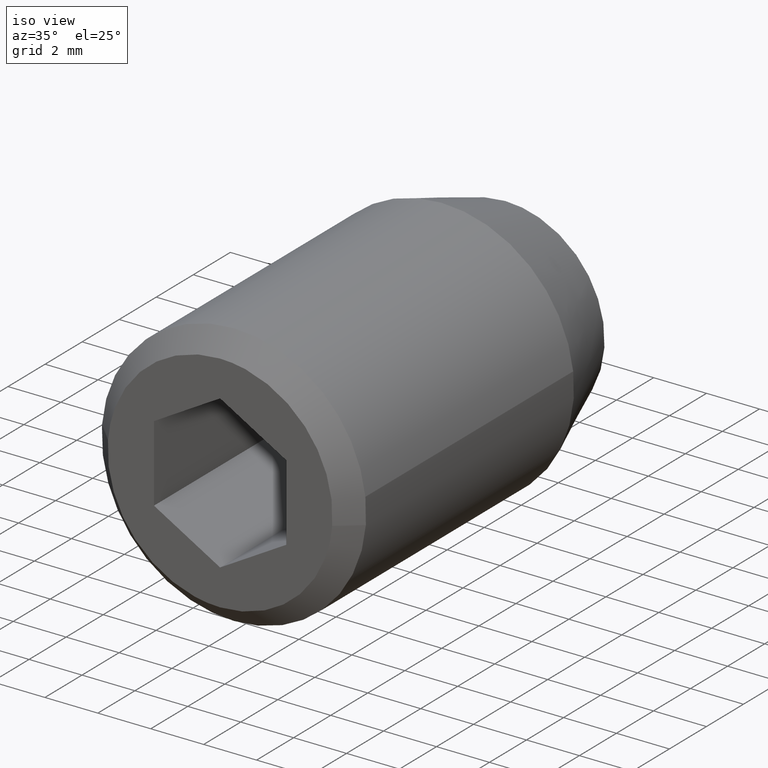
[diagram: clean part render]
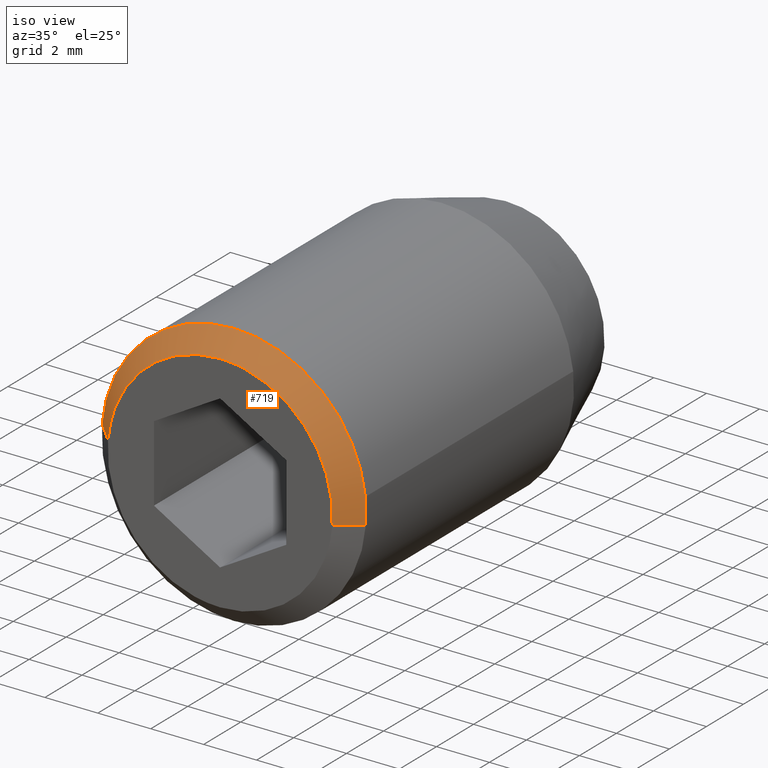
[diagram: same view with one face highlighted and labeled with its STEP entity id]
A machine part, iso view. The second image highlights one B-rep face of the part: STEP entity #719.
In plain terms, the highlighted face is a freeform B-spline surface patch.
Its self-contained STEP definition (entity closure, byte-faithful):
#457=CARTESIAN_POINT('',(4.967346085301280,-14.650000000000000,0.570502295210953));
#458=VERTEX_POINT('',#457);
#459=CARTESIAN_POINT('',(0.0,-14.650000000000000,4.999999999999999));
#460=VERTEX_POINT('',#459);
#461=CARTESIAN_POINT('',(4.967346085301280,-14.649999999999997,0.570502295210953));
#462=CARTESIAN_POINT('',(4.458615957821147,-14.649999999999991,4.999999999999998));
#463=CARTESIAN_POINT('',(0.0,-14.650000000000000,4.999999999999999));
#471=(BOUNDED_CURVE()B_SPLINE_CURVE(2,(#461,#462,#463),.UNSPECIFIED.,.F.,.U.)B_SPLINE_CURVE_WITH_KNOTS((3,3),(0.269767720836219,0.500000000000000),.UNSPECIFIED.)CURVE()GEOMETRIC_REPRESENTATION_ITEM()RATIONAL_B_SPLINE_CURVE((0.957343805581206,0.730266106723851,1.0))REPRESENTATION_ITEM(''));
#472=EDGE_CURVE('',#458,#460,#471,.T.);
#488=CARTESIAN_POINT('',(-4.984586668666798,-14.649999999997091,0.392295478661580));
#489=VERTEX_POINT('',#488);
#503=CARTESIAN_POINT('',(0.0,-14.650000000000000,4.999999999999999));
#504=CARTESIAN_POINT('',(-4.621952458249877,-14.649999999999997,4.999999999999999));
#505=CARTESIAN_POINT('',(-4.984586668666798,-14.649999999997092,0.392295478661580));
#513=(BOUNDED_CURVE()B_SPLINE_CURVE(2,(#503,#504,#505),.UNSPECIFIED.,.F.,.U.)B_SPLINE_CURVE_WITH_KNOTS((3,3),(0.500000000000000,0.736331300631245),.UNSPECIFIED.)CURVE()GEOMETRIC_REPRESENTATION_ITEM()RATIONAL_B_SPLINE_CURVE((1.0,0.723120658606980,0.969723356168640))REPRESENTATION_ITEM(''));
#514=EDGE_CURVE('',#460,#489,#513,.T.);
#541=CARTESIAN_POINT('',(4.984586668666797,-14.649999999997091,-0.392295478661581));
#542=VERTEX_POINT('',#541);
#543=CARTESIAN_POINT('',(4.984586668666798,-14.649999999997096,-0.392295478661581));
#544=CARTESIAN_POINT('',(5.0,-14.650000000000004,-0.196450535060578));
#545=CARTESIAN_POINT('',(5.0,-14.650000000000000,-7.898711E-016));
#546=CARTESIAN_POINT('',(4.999999999999999,-14.650000000000002,0.286185655804744));
#547=CARTESIAN_POINT('',(4.967346085301280,-14.649999999999997,0.570502295210953));
#555=(BOUNDED_CURVE()B_SPLINE_CURVE(2,(#543,#544,#545,#546,#547),.UNSPECIFIED.,.F.,.U.)B_SPLINE_CURVE_WITH_KNOTS((3,2,3),(0.236331300631245,0.250000000000000,0.269767720836219),.UNSPECIFIED.)CURVE()GEOMETRIC_REPRESENTATION_ITEM()RATIONAL_B_SPLINE_CURVE((0.969723356168639,0.983986122579568,1.0,0.976840674462697,0.957343805581206))REPRESENTATION_ITEM(''));
#556=EDGE_CURVE('',#542,#458,#555,.T.);
#615=CARTESIAN_POINT('',(4.236898668366878,-15.399999999997281,-0.333451156864203));
#616=VERTEX_POINT('',#615);
#617=CARTESIAN_POINT('',(4.236898668366878,-15.399999999997281,-0.333451156864203));
#618=CARTESIAN_POINT('',(4.984586668666797,-14.649999999997091,-0.392295478661581));
#619=QUASI_UNIFORM_CURVE('',1,(#617,#618),.UNSPECIFIED.,.F.,.U.);
#620=EDGE_CURVE('',#616,#542,#619,.T.);
#637=CARTESIAN_POINT('',(-4.236898668366878,-15.399999999997281,0.333451156864201));
#638=VERTEX_POINT('',#637);
#654=CARTESIAN_POINT('',(-4.236898668366878,-15.399999999997281,0.333451156864201));
#655=CARTESIAN_POINT('',(-4.984586668666798,-14.649999999997091,0.392295478661580));
#656=QUASI_UNIFORM_CURVE('',1,(#654,#655),.UNSPECIFIED.,.F.,.U.);
#657=EDGE_CURVE('',#638,#489,#656,.T.);
#664=CARTESIAN_POINT('',(-4.218206468358297,-15.418749999999999,0.331980048798446));
#665=CARTESIAN_POINT('',(-3.886226419559850,-15.418749999999998,4.550186517156743));
#666=CARTESIAN_POINT('',(0.331980048798447,-15.418749999999999,4.218206468358296));
#667=CARTESIAN_POINT('',(4.550186517156743,-15.418749999999998,3.886226419559850));
#668=CARTESIAN_POINT('',(4.218206468358297,-15.418749999999999,-0.331980048798447));
#669=CARTESIAN_POINT('',(-5.003746173673324,-14.630781250000000,0.393803364385247));
#670=CARTESIAN_POINT('',(-4.609942809288076,-14.630781249999997,5.397549538058571));
#671=CARTESIAN_POINT('',(0.393803364385247,-14.630781250000000,5.003746173673323));
#672=CARTESIAN_POINT('',(5.397549538058571,-14.630781249999997,4.609942809288076));
#673=CARTESIAN_POINT('',(5.003746173673324,-14.630781250000000,-0.393803364385248));
#681=(BOUNDED_SURFACE()B_SPLINE_SURFACE(2,1,((#664,#669),(#665,#670),(#666,#671),(#667,#672),(#668,#673)),.UNSPECIFIED.,.F.,.F.,.U.)B_SPLINE_SURFACE_WITH_KNOTS((3,2,3),(2,2),(0.0,8.316113915069334,16.632227830138671),(0.0,1.0),.UNSPECIFIED.)GEOMETRIC_REPRESENTATION_ITEM()RATIONAL_B_SPLINE_SURFACE(((1.0,1.0),(0.707106781186548,0.707106781186548),(1.0,1.0),(0.707106781186548,0.707106781186548),(1.0,1.0)))REPRESENTATION_ITEM('')SURFACE());
#682=ORIENTED_EDGE('',*,*,#556,.T.);
#683=ORIENTED_EDGE('',*,*,#472,.T.);
#684=ORIENTED_EDGE('',*,*,#514,.T.);
#685=ORIENTED_EDGE('',*,*,#657,.F.);
#686=CARTESIAN_POINT('',(0.0,-15.400000000000000,4.249999999999999));
#687=VERTEX_POINT('',#686);
#688=CARTESIAN_POINT('',(0.0,-15.400000000000000,4.249999999999999));
#689=CARTESIAN_POINT('',(-3.928659589508976,-15.399999999999997,4.249999999999999));
#690=CARTESIAN_POINT('',(-4.236898668366878,-15.399999999997288,0.333451156864201));
#698=(BOUNDED_CURVE()B_SPLINE_CURVE(2,(#688,#689,#690),.UNSPECIFIED.,.F.,.U.)B_SPLINE_CURVE_WITH_KNOTS((3,3),(0.500000000000000,0.736331300631096),.UNSPECIFIED.)CURVE()GEOMETRIC_REPRESENTATION_ITEM()RATIONAL_B_SPLINE_CURVE((1.0,0.723120658607154,0.969723356168329))REPRESENTATION_ITEM(''));
#699=EDGE_CURVE('',#687,#638,#698,.T.);
#700=ORIENTED_EDGE('',*,*,#699,.F.);
#701=CARTESIAN_POINT('',(4.236898668366878,-15.399999999997286,-0.333451156864203));
#702=CARTESIAN_POINT('',(4.250000000000000,-15.400000000000002,-0.166982954803340));
#703=CARTESIAN_POINT('',(4.250000000000000,-15.400000000000000,-7.898711E-016));
#704=CARTESIAN_POINT('',(4.249999999999999,-15.399999999999997,4.249999999999998));
#705=CARTESIAN_POINT('',(0.0,-15.400000000000000,4.249999999999999));
#713=(BOUNDED_CURVE()B_SPLINE_CURVE(2,(#701,#702,#703,#704,#705),.UNSPECIFIED.,.F.,.U.)B_SPLINE_CURVE_WITH_KNOTS((3,2,3),(0.236331300631096,0.250000000000000,0.500000000000000),.UNSPECIFIED.)CURVE()GEOMETRIC_REPRESENTATION_ITEM()RATIONAL_B_SPLINE_CURVE((0.969723356168329,0.983986122579393,1.0,0.707106781186548,1.0))REPRESENTATION_ITEM(''));
#714=EDGE_CURVE('',#616,#687,#713,.T.);
#715=ORIENTED_EDGE('',*,*,#714,.F.);
#716=ORIENTED_EDGE('',*,*,#620,.T.);
#717=EDGE_LOOP('',(#682,#683,#684,#685,#700,#715,#716));
#718=FACE_OUTER_BOUND('',#717,.T.);
#719=ADVANCED_FACE('',(#718),#681,.T.);